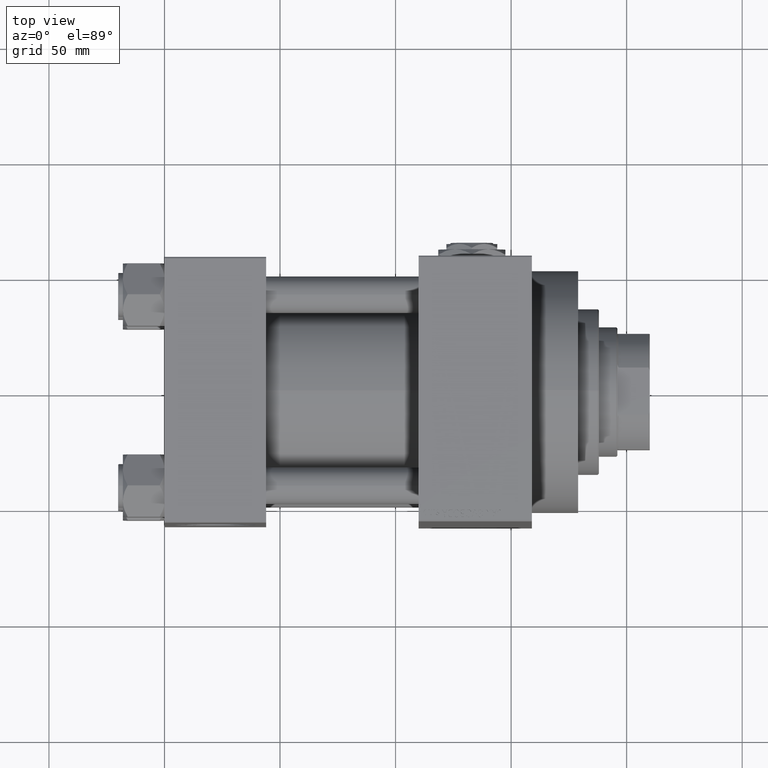
[diagram: clean part render]
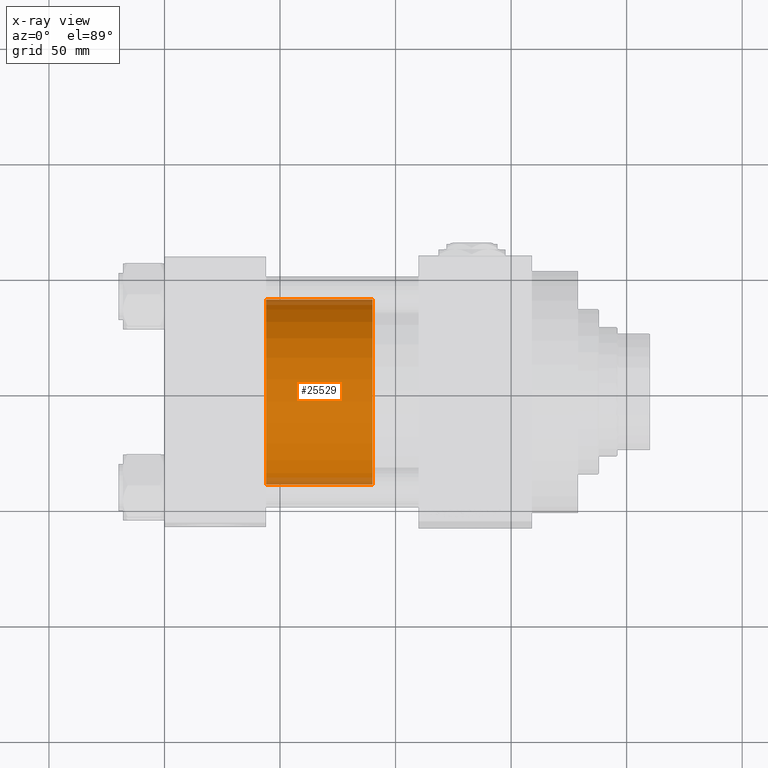
[diagram: x-ray — body ghosted, one internal face saturated and labeled with its STEP entity id]
A machine part, top view, then the same camera in x-ray: the body is ghosted and one INTERNAL B-rep face — a face not visible from any outside direction — is saturated and labeled: STEP entity #25529.
In plain terms, the highlighted cylindrical surface (partial cylindrical patch) has radius 40 mm, axis along (-1, 0, 0).
Its self-contained STEP definition (entity closure, byte-faithful):
#370 = CARTESIAN_POINT ( 'NONE',  ( -40.00000000000000000, 0.000000000000000000, 46.00000000000000000 ) ) ;
#1092 = CARTESIAN_POINT ( 'NONE',  ( 40.00000000000000000, 4.898587196589413026E-15, 0.000000000000000000 ) ) ;
#2913 = VERTEX_POINT ( 'NONE', #6800 ) ;
#3166 = CARTESIAN_POINT ( 'NONE',  ( 0.000000000000000000, 0.000000000000000000, 0.000000000000000000 ) ) ;
#3664 = DIRECTION ( 'NONE',  ( 0.000000000000000000, 0.000000000000000000, 1.000000000000000000 ) ) ;
#6800 = CARTESIAN_POINT ( 'NONE',  ( -40.00000000000000000, 0.000000000000000000, 0.000000000000000000 ) ) ;
#9211 = DIRECTION ( 'NONE',  ( 0.000000000000000000, 0.000000000000000000, 1.000000000000000000 ) ) ;
#9251 = VECTOR ( 'NONE', #38348, 1000.000000000000000 ) ;
#9463 = CARTESIAN_POINT ( 'NONE',  ( -40.00000000000000000, 0.000000000000000000, 46.00000000000000000 ) ) ;
#9794 = AXIS2_PLACEMENT_3D ( 'NONE', #16765, #31911, #47088 ) ;
#11781 = LINE ( 'NONE', #9463, #46969 ) ;
#11872 = EDGE_CURVE ( 'NONE', #31612, #35962, #31641, .T. ) ;
#12697 = DIRECTION ( 'NONE',  ( 1.000000000000000000, 0.000000000000000000, 0.000000000000000000 ) ) ;
#14929 = VERTEX_POINT ( 'NONE', #1092 ) ;
#16319 = ORIENTED_EDGE ( 'NONE', *, *, #36248, .F. ) ;
#16765 = CARTESIAN_POINT ( 'NONE',  ( 0.000000000000000000, 0.000000000000000000, 46.00000000000000000 ) ) ;
#19758 = AXIS2_PLACEMENT_3D ( 'NONE', #27831, #9211, #12697 ) ;
#20479 = CYLINDRICAL_SURFACE ( 'NONE', #9794, 40.00000000000000000 ) ;
#22451 = EDGE_CURVE ( 'NONE', #31612, #2913, #11781, .T. ) ;
#23171 = CARTESIAN_POINT ( 'NONE',  ( 40.00000000000000000, 4.898587196589413026E-15, 46.00000000000000000 ) ) ;
#24197 = FACE_OUTER_BOUND ( 'NONE', #35802, .T. ) ;
#24203 = CARTESIAN_POINT ( 'NONE',  ( 40.00000000000000000, 4.898587196589413026E-15, 46.00000000000000000 ) ) ;
#25529 = ADVANCED_FACE ( 'NONE', ( #24197 ), #20479, .T. ) ;
#26189 = ORIENTED_EDGE ( 'NONE', *, *, #34788, .T. ) ;
#27393 = AXIS2_PLACEMENT_3D ( 'NONE', #3166, #3664, #48657 ) ;
#27831 = CARTESIAN_POINT ( 'NONE',  ( 0.000000000000000000, 0.000000000000000000, 46.00000000000000000 ) ) ;
#28139 = ORIENTED_EDGE ( 'NONE', *, *, #11872, .F. ) ;
#31386 = ORIENTED_EDGE ( 'NONE', *, *, #22451, .T. ) ;
#31612 = VERTEX_POINT ( 'NONE', #370 ) ;
#31641 = CIRCLE ( 'NONE', #19758, 40.00000000000000000 ) ;
#31814 = DIRECTION ( 'NONE',  ( -0.000000000000000000, -0.000000000000000000, -1.000000000000000000 ) ) ;
#31911 = DIRECTION ( 'NONE',  ( -0.000000000000000000, -0.000000000000000000, -1.000000000000000000 ) ) ;
#32158 = CIRCLE ( 'NONE', #27393, 40.00000000000000000 ) ;
#34788 = EDGE_CURVE ( 'NONE', #2913, #14929, #32158, .T. ) ;
#35802 = EDGE_LOOP ( 'NONE', ( #16319, #28139, #31386, #26189 ) ) ;
#35962 = VERTEX_POINT ( 'NONE', #24203 ) ;
#36248 = EDGE_CURVE ( 'NONE', #35962, #14929, #46301, .T. ) ;
#38348 = DIRECTION ( 'NONE',  ( -0.000000000000000000, -0.000000000000000000, -1.000000000000000000 ) ) ;
#46301 = LINE ( 'NONE', #23171, #9251 ) ;
#46969 = VECTOR ( 'NONE', #31814, 1000.000000000000000 ) ;
#47088 = DIRECTION ( 'NONE',  ( -1.000000000000000000, 0.000000000000000000, 0.000000000000000000 ) ) ;
#48657 = DIRECTION ( 'NONE',  ( 1.000000000000000000, 0.000000000000000000, 0.000000000000000000 ) ) ;